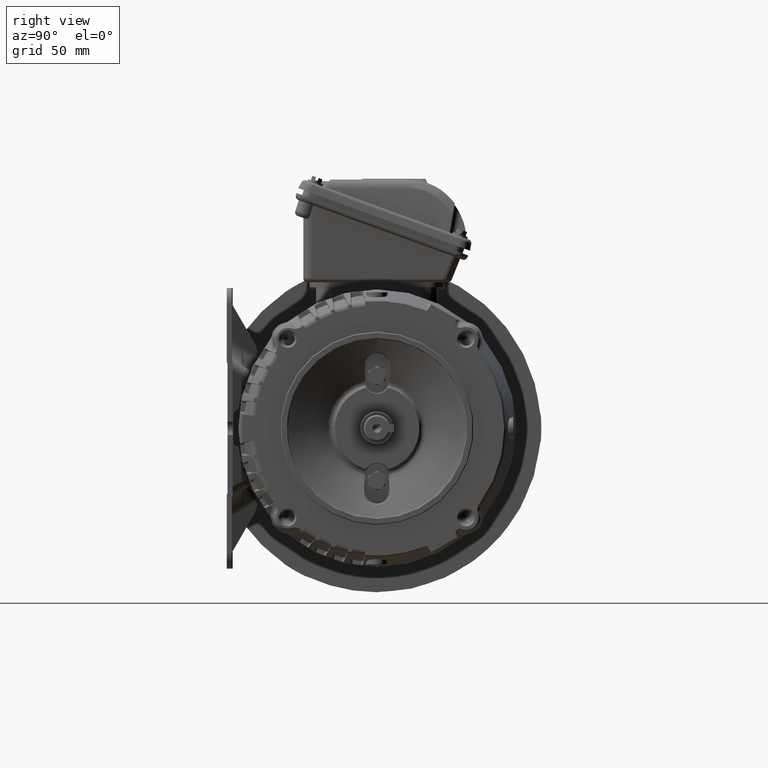
[diagram: clean part render]
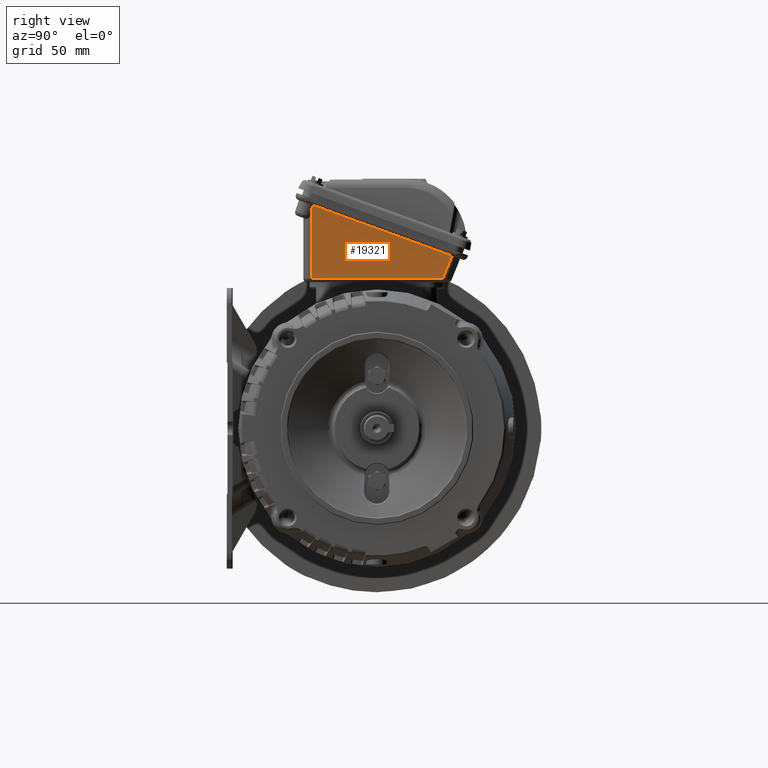
[diagram: same view with one face highlighted and labeled with its STEP entity id]
A machine part, right view. The second image highlights one B-rep face of the part: STEP entity #19321.
In plain terms, the highlighted planar face has unit normal (0.9994, -0.0119, -0.0328).
Its self-contained STEP definition (entity closure, byte-faithful):
#472 = VECTOR ( 'NONE', #7833, 39.37007874015748854 ) ;
#1421 = LINE ( 'NONE', #10080, #27125 ) ;
#1585 = CARTESIAN_POINT ( 'NONE',  ( 2.319870090719251987, -1.759966832791856506, 5.527479861120275118 ) ) ;
#1832 = VERTEX_POINT ( 'NONE', #7660 ) ;
#2825 = LINE ( 'NONE', #36204, #25736 ) ;
#3075 = VECTOR ( 'NONE', #39007, 39.37007874015748143 ) ;
#3362 = DIRECTION ( 'NONE',  ( 0.01194275480156231466, 0.9999286827608004913, 0.000000000000000000 ) ) ;
#6381 = AXIS2_PLACEMENT_3D ( 'NONE', #25095, #53326, #21053 ) ;
#7660 = CARTESIAN_POINT ( 'NONE',  ( 2.306668801495566967, -1.759966832792112079, 5.125182925388386046 ) ) ;
#7833 = DIRECTION ( 'NONE',  ( 0.03487826274237475904, 0.3743786708892550830, 0.9266197265174471731 ) ) ;
#9176 = CARTESIAN_POINT ( 'NONE',  ( 2.309207727074350736, 1.497105386100952895, 4.017076968022519345 ) ) ;
#10080 = CARTESIAN_POINT ( 'NONE',  ( 2.309207727074350736, 1.833923167699043510, 3.894485321149236068 ) ) ;
#10243 = LINE ( 'NONE', #1585, #3075 ) ;
#10953 = CARTESIAN_POINT ( 'NONE',  ( 2.309207727074350736, -1.735459159321139921, 5.193634242900000864 ) ) ;
#11667 = EDGE_CURVE ( 'NONE', #36159, #16687, #16784, .T. ) ;
#14110 = CARTESIAN_POINT ( 'NONE',  ( 2.252857979576763814, -1.759966832791854285, 3.485348481931326958 ) ) ;
#14149 = ORIENTED_EDGE ( 'NONE', *, *, #45673, .T. ) ;
#14322 = CARTESIAN_POINT ( 'NONE',  ( 2.306668801495566967, -1.759966832792112079, 5.125182925388386046 ) ) ;
#14848 = CARTESIAN_POINT ( 'NONE',  ( 2.308362724805493649, -1.743612038149070065, 5.170850994701125636 ) ) ;
#15904 = EDGE_CURVE ( 'NONE', #28302, #36159, #2825, .T. ) ;
#16687 = VERTEX_POINT ( 'NONE', #9176 ) ;
#16784 = LINE ( 'NONE', #28419, #472 ) ;
#19321 = ADVANCED_FACE ( 'NONE', ( #21580 ), #33247, .T. ) ;
#21053 = DIRECTION ( 'NONE',  ( -0.03279713600599318962, 0.000000000000000000, -0.9994620292286268137 ) ) ;
#21580 = FACE_OUTER_BOUND ( 'NONE', #21672, .T. ) ;
#21672 = EDGE_LOOP ( 'NONE', ( #51208, #29683, #14149, #40711, #42069 ) ) ;
#25095 = CARTESIAN_POINT ( 'NONE',  ( 2.317456727741693090, -1.962247583953519836, 5.527559055118110187 ) ) ;
#25736 = VECTOR ( 'NONE', #3362, 39.37007874015748854 ) ;
#27125 = VECTOR ( 'NONE', #50786, 39.37007874015748143 ) ;
#28302 = VERTEX_POINT ( 'NONE', #14110 ) ;
#28419 = CARTESIAN_POINT ( 'NONE',  ( 2.289193296866617988, 1.282273132696486462, 3.485348481931326958 ) ) ;
#29414 =( BOUNDED_CURVE ( )  B_SPLINE_CURVE ( 3, ( #14322, #39286, #14848, #52008 ),
 .UNSPECIFIED., .F., .F. ) 
 B_SPLINE_CURVE_WITH_KNOTS ( ( 4, 4 ),
 ( 4.929279282742873747, 4.942784503016807385 ),
 .UNSPECIFIED. ) 
 CURVE ( )  GEOMETRIC_REPRESENTATION_ITEM ( )  RATIONAL_B_SPLINE_CURVE ( ( 1.000000000000000000, 0.9999848008098668473, 0.9999848008098668473, 1.000000000000000000 ) ) 
 REPRESENTATION_ITEM ( '' )  );
#29683 = ORIENTED_EDGE ( 'NONE', *, *, #31124, .F. ) ;
#31124 = EDGE_CURVE ( 'NONE', #1832, #48459, #29414, .T. ) ;
#33247 = PLANE ( 'NONE',  #6381 ) ;
#36159 = VERTEX_POINT ( 'NONE', #45454 ) ;
#36204 = CARTESIAN_POINT ( 'NONE',  ( 2.252857979576763814, -1.759966832791854285, 3.485348481931326958 ) ) ;
#39007 = DIRECTION ( 'NONE',  ( -0.03279713600599318962, 0.000000000000000000, -0.9994620292286268137 ) ) ;
#39286 = CARTESIAN_POINT ( 'NONE',  ( 2.307516403415833306, -1.751781386806671836, 5.148033542057539158 ) ) ;
#40711 = ORIENTED_EDGE ( 'NONE', *, *, #15904, .T. ) ;
#41145 = EDGE_CURVE ( 'NONE', #16687, #48459, #1421, .T. ) ;
#42069 = ORIENTED_EDGE ( 'NONE', *, *, #11667, .T. ) ;
#45454 = CARTESIAN_POINT ( 'NONE',  ( 2.289193296866617988, 1.282273132696486462, 3.485348481931326958 ) ) ;
#45673 = EDGE_CURVE ( 'NONE', #1832, #28302, #10243, .T. ) ;
#48459 = VERTEX_POINT ( 'NONE', #10953 ) ;
#50786 = DIRECTION ( 'NONE',  ( 0.000000000000000000, -0.9396926207859080948, 0.3420201433256695456 ) ) ;
#51208 = ORIENTED_EDGE ( 'NONE', *, *, #41145, .T. ) ;
#52008 = CARTESIAN_POINT ( 'NONE',  ( 2.309207727074350736, -1.735459159321139921, 5.193634242900000864 ) ) ;
#53326 = DIRECTION ( 'NONE',  ( 0.9993908270190958731, -0.01193633086418313671, -0.03279479952048236502 ) ) ;